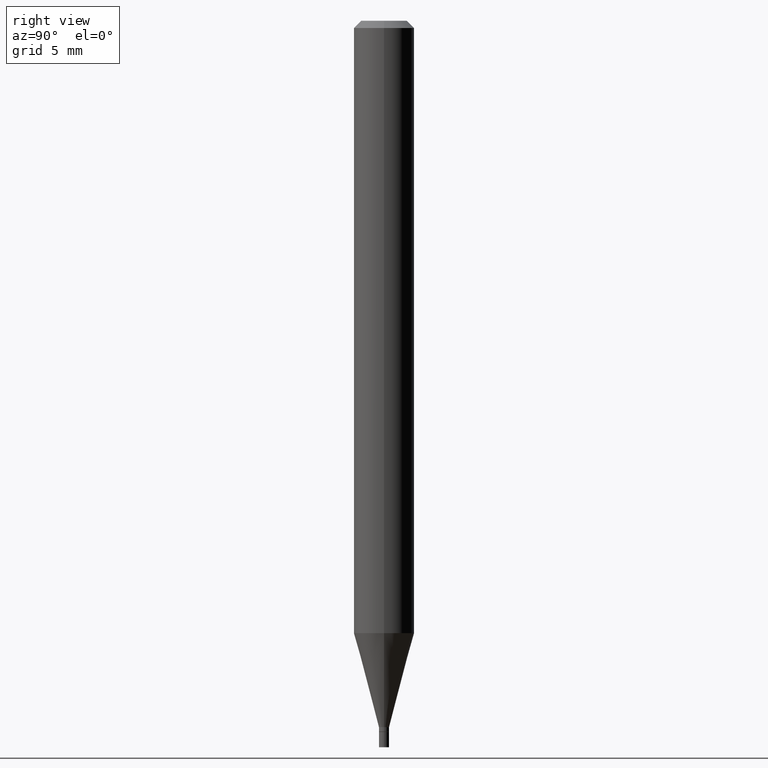
[diagram: clean part render]
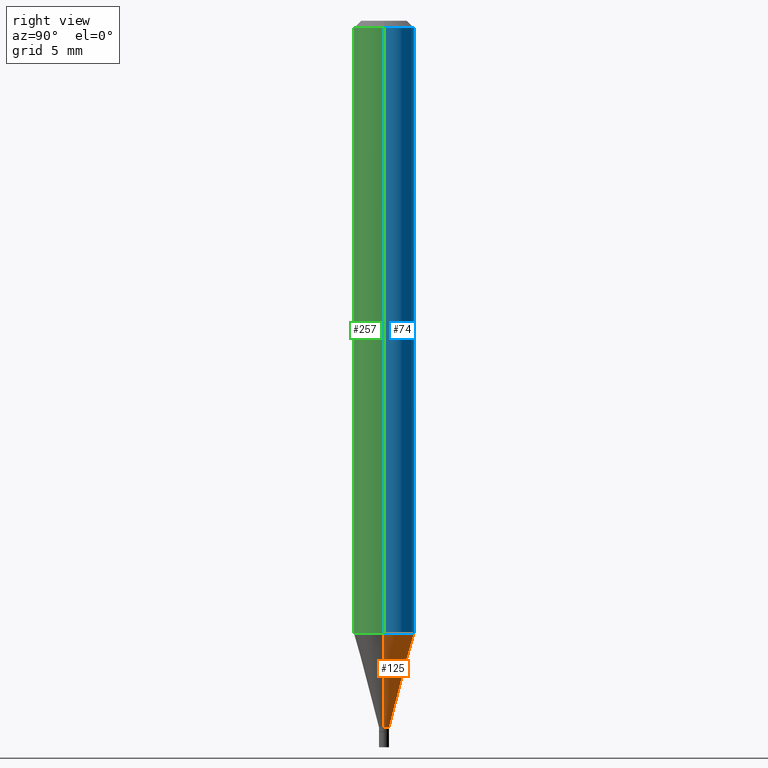
[diagram: same view with three faces highlighted in distinct colors, each labeled with its STEP entity id]
A machine part, right view with three faces highlighted in distinct colors.
Their STEP definitions:

[orange] entity #125 — the highlighted conical surface has half-angle 15 deg.
#5 = CIRCLE ( 'NONE', #455, 0.01049999999999992432 ) ;
#36 = CARTESIAN_POINT ( 'NONE',  ( 0.06250000000000000000, -4.851180641045576712E-15, -1.264433358006418651 ) ) ;
#40 = EDGE_LOOP ( 'NONE', ( #258, #169, #213, #244 ) ) ;
#58 = CARTESIAN_POINT ( 'NONE',  ( 0.01049999999999992432, -5.165646640818432586E-15, -1.458500000000000130 ) ) ;
#67 = DIRECTION ( 'NONE',  ( 0.2588190451025214611, 1.565188264969621573E-15, 0.9659258262890682012 ) ) ;
#72 = AXIS2_PLACEMENT_3D ( 'NONE', #447, #226, #123 ) ;
#90 = CARTESIAN_POINT ( 'NONE',  ( 3.092132334504619836E-29, -4.414745473690185042E-15, -1.264433358006418651 ) ) ;
#119 = LINE ( 'NONE', #231, #380 ) ;
#123 = DIRECTION ( 'NONE',  ( 1.000000000000000000, -6.982962677686243834E-15, 0.000000000000000000 ) ) ;
#125 = ADVANCED_FACE ( 'NONE', ( #272 ), #279, .T. ) ;
#126 = DIRECTION ( 'NONE',  ( -2.445468806185136597E-29, 3.491481338843145583E-15, 1.000000000000000000 ) ) ;
#150 = CIRCLE ( 'NONE', #371, 0.06250000000000000000 ) ;
#155 = CARTESIAN_POINT ( 'NONE',  ( -0.01049999999999992432, -4.494187404644019652E-15, -1.458500000000000130 ) ) ;
#169 = ORIENTED_EDGE ( 'NONE', *, *, #264, .T. ) ;
#171 = LINE ( 'NONE', #391, #306 ) ;
#213 = ORIENTED_EDGE ( 'NONE', *, *, #293, .F. ) ;
#215 = DIRECTION ( 'NONE',  ( 1.000000000000000000, -6.982962677686262766E-15, 0.000000000000000000 ) ) ;
#226 = DIRECTION ( 'NONE',  ( -2.445468806185136597E-29, 3.491481338843145583E-15, 1.000000000000000000 ) ) ;
#231 = CARTESIAN_POINT ( 'NONE',  ( -0.01049999999999992432, -5.017718545447917667E-15, -1.458500000000000130 ) ) ;
#244 = ORIENTED_EDGE ( 'NONE', *, *, #400, .F. ) ;
#246 = VERTEX_POINT ( 'NONE', #155 ) ;
#258 = ORIENTED_EDGE ( 'NONE', *, *, #433, .T. ) ;
#264 = EDGE_CURVE ( 'NONE', #246, #384, #119, .T. ) ;
#269 = DIRECTION ( 'NONE',  ( -0.2588190451025214611, 5.211531920934551042E-15, 0.9659258262890682012 ) ) ;
#272 = FACE_OUTER_BOUND ( 'NONE', #40, .T. ) ;
#279 = CONICAL_SURFACE ( 'NONE', #72, 0.01049999999999992432, 0.2617993877991501295 ) ;
#284 = CARTESIAN_POINT ( 'NONE',  ( -0.06250000000000000000, -3.970656263840122426E-15, -1.264433358006418651 ) ) ;
#293 = EDGE_CURVE ( 'NONE', #353, #384, #150, .T. ) ;
#306 = VECTOR ( 'NONE', #67, 39.37007874015747433 ) ;
#313 = DIRECTION ( 'NONE',  ( -2.445468806185136597E-29, 3.491481338843145583E-15, 1.000000000000000000 ) ) ;
#353 = VERTEX_POINT ( 'NONE', #36 ) ;
#371 = AXIS2_PLACEMENT_3D ( 'NONE', #90, #126, #215 ) ;
#380 = VECTOR ( 'NONE', #269, 39.37007874015747433 ) ;
#383 = CARTESIAN_POINT ( 'NONE',  ( 3.566716253821021430E-29, -5.092325532702727858E-15, -1.458500000000000130 ) ) ;
#384 = VERTEX_POINT ( 'NONE', #284 ) ;
#391 = CARTESIAN_POINT ( 'NONE',  ( 0.01049999999999992432, -5.165646640818432586E-15, -1.458500000000000130 ) ) ;
#400 = EDGE_CURVE ( 'NONE', #457, #353, #171, .T. ) ;
#433 = EDGE_CURVE ( 'NONE', #457, #246, #5, .T. ) ;
#447 = CARTESIAN_POINT ( 'NONE',  ( 3.566716253821021430E-29, -5.092325532702727858E-15, -1.458500000000000130 ) ) ;
#453 = DIRECTION ( 'NONE',  ( 1.000000000000000000, -6.982962677686243834E-15, 0.000000000000000000 ) ) ;
#455 = AXIS2_PLACEMENT_3D ( 'NONE', #383, #313, #453 ) ;
#457 = VERTEX_POINT ( 'NONE', #58 ) ;

[blue] entity #74 — the highlighted cylindrical surface (edge-blend (fillet) strip) has radius 1.5875 mm, axis along (-0, 0, 1).
#8 = CYLINDRICAL_SURFACE ( 'NONE', #136, 0.06250000000000000000 ) ;
#15 = CARTESIAN_POINT ( 'NONE',  ( 0.06250000000000000000, -4.364351673553916694E-16, 3.047610484872459871E-30 ) ) ;
#30 = VECTOR ( 'NONE', #374, 39.37007874015748143 ) ;
#34 = CARTESIAN_POINT ( 'NONE',  ( -0.06250000000000000000, -1.789469637036353642E-15, -0.01499999999999999944 ) ) ;
#36 = CARTESIAN_POINT ( 'NONE',  ( 0.06250000000000000000, -4.851180641045576712E-15, -1.264433358006418651 ) ) ;
#44 = DIRECTION ( 'NONE',  ( -2.445468806185136597E-29, 3.491481338843145583E-15, 1.000000000000000000 ) ) ;
#57 = EDGE_CURVE ( 'NONE', #384, #354, #118, .T. ) ;
#74 = ADVANCED_FACE ( 'NONE', ( #111 ), #8, .T. ) ;
#90 = CARTESIAN_POINT ( 'NONE',  ( 3.092132334504619836E-29, -4.414745473690185042E-15, -1.264433358006418651 ) ) ;
#111 = FACE_OUTER_BOUND ( 'NONE', #414, .T. ) ;
#118 = LINE ( 'NONE', #157, #437 ) ;
#126 = DIRECTION ( 'NONE',  ( -2.445468806185136597E-29, 3.491481338843145583E-15, 1.000000000000000000 ) ) ;
#128 = ORIENTED_EDGE ( 'NONE', *, *, #140, .F. ) ;
#130 = AXIS2_PLACEMENT_3D ( 'NONE', #278, #419, #164 ) ;
#136 = AXIS2_PLACEMENT_3D ( 'NONE', #266, #44, #222 ) ;
#140 = EDGE_CURVE ( 'NONE', #353, #242, #158, .T. ) ;
#150 = CIRCLE ( 'NONE', #371, 0.06250000000000000000 ) ;
#157 = CARTESIAN_POINT ( 'NONE',  ( -0.06250000000000000000, 4.440892098500626162E-16, -3.074334431409316114E-30 ) ) ;
#158 = LINE ( 'NONE', #15, #30 ) ;
#164 = DIRECTION ( 'NONE',  ( 1.000000000000000000, -6.982962677686266711E-15, 0.000000000000000000 ) ) ;
#215 = DIRECTION ( 'NONE',  ( 1.000000000000000000, -6.982962677686262766E-15, 0.000000000000000000 ) ) ;
#222 = DIRECTION ( 'NONE',  ( 1.000000000000000000, -6.982962677686266711E-15, 4.876176775795935793E-29 ) ) ;
#242 = VERTEX_POINT ( 'NONE', #411 ) ;
#266 = CARTESIAN_POINT ( 'NONE',  ( 0.000000000000000000, 0.000000000000000000, 0.000000000000000000 ) ) ;
#278 = CARTESIAN_POINT ( 'NONE',  ( 3.668203209277705088E-31, -5.237222008264718399E-17, -0.01499999999999999944 ) ) ;
#284 = CARTESIAN_POINT ( 'NONE',  ( -0.06250000000000000000, -3.970656263840122426E-15, -1.264433358006418651 ) ) ;
#293 = EDGE_CURVE ( 'NONE', #353, #384, #150, .T. ) ;
#348 = ORIENTED_EDGE ( 'NONE', *, *, #388, .F. ) ;
#353 = VERTEX_POINT ( 'NONE', #36 ) ;
#354 = VERTEX_POINT ( 'NONE', #34 ) ;
#371 = AXIS2_PLACEMENT_3D ( 'NONE', #90, #126, #215 ) ;
#374 = DIRECTION ( 'NONE',  ( -2.445468806185136877E-29, 3.491481338843145188E-15, 1.000000000000000000 ) ) ;
#384 = VERTEX_POINT ( 'NONE', #284 ) ;
#388 = EDGE_CURVE ( 'NONE', #242, #354, #426, .T. ) ;
#411 = CARTESIAN_POINT ( 'NONE',  ( 0.06250000000000000000, -4.888073874380388472E-16, -0.01499999999999999944 ) ) ;
#414 = EDGE_LOOP ( 'NONE', ( #462, #420, #348, #128 ) ) ;
#419 = DIRECTION ( 'NONE',  ( -2.445468806185136597E-29, 3.491481338843145583E-15, 1.000000000000000000 ) ) ;
#420 = ORIENTED_EDGE ( 'NONE', *, *, #57, .T. ) ;
#426 = CIRCLE ( 'NONE', #130, 0.06250000000000000000 ) ;
#437 = VECTOR ( 'NONE', #442, 39.37007874015748143 ) ;
#442 = DIRECTION ( 'NONE',  ( -2.445468806185136877E-29, 3.491481338843145188E-15, 1.000000000000000000 ) ) ;
#462 = ORIENTED_EDGE ( 'NONE', *, *, #293, .T. ) ;

[green] entity #257 — the highlighted cylindrical surface (edge-blend (fillet) strip) has radius 1.5875 mm, axis along (-0, 0, 1).
#11 = DIRECTION ( 'NONE',  ( -2.445468806185136597E-29, 3.491481338843145583E-15, 1.000000000000000000 ) ) ;
#15 = CARTESIAN_POINT ( 'NONE',  ( 0.06250000000000000000, -4.364351673553916694E-16, 3.047610484872459871E-30 ) ) ;
#26 = ORIENTED_EDGE ( 'NONE', *, *, #270, .F. ) ;
#30 = VECTOR ( 'NONE', #374, 39.37007874015748143 ) ;
#34 = CARTESIAN_POINT ( 'NONE',  ( -0.06250000000000000000, -1.789469637036353642E-15, -0.01499999999999999944 ) ) ;
#36 = CARTESIAN_POINT ( 'NONE',  ( 0.06250000000000000000, -4.851180641045576712E-15, -1.264433358006418651 ) ) ;
#57 = EDGE_CURVE ( 'NONE', #384, #354, #118, .T. ) ;
#80 = DIRECTION ( 'NONE',  ( 1.000000000000000000, -6.982962677686266711E-15, 0.000000000000000000 ) ) ;
#81 = DIRECTION ( 'NONE',  ( 1.000000000000000000, -6.982962677686266711E-15, 4.876176775795935793E-29 ) ) ;
#84 = CYLINDRICAL_SURFACE ( 'NONE', #430, 0.06250000000000000000 ) ;
#86 = CARTESIAN_POINT ( 'NONE',  ( 0.000000000000000000, 0.000000000000000000, 0.000000000000000000 ) ) ;
#118 = LINE ( 'NONE', #157, #437 ) ;
#120 = CIRCLE ( 'NONE', #251, 0.06250000000000000000 ) ;
#140 = EDGE_CURVE ( 'NONE', #353, #242, #158, .T. ) ;
#149 = DIRECTION ( 'NONE',  ( -2.445468806185136597E-29, 3.491481338843145583E-15, 1.000000000000000000 ) ) ;
#157 = CARTESIAN_POINT ( 'NONE',  ( -0.06250000000000000000, 4.440892098500626162E-16, -3.074334431409316114E-30 ) ) ;
#158 = LINE ( 'NONE', #15, #30 ) ;
#179 = CIRCLE ( 'NONE', #238, 0.06250000000000000000 ) ;
#187 = CARTESIAN_POINT ( 'NONE',  ( 3.668203209277705088E-31, -5.237222008264718399E-17, -0.01499999999999999944 ) ) ;
#193 = FACE_OUTER_BOUND ( 'NONE', #387, .T. ) ;
#212 = ORIENTED_EDGE ( 'NONE', *, *, #57, .F. ) ;
#238 = AXIS2_PLACEMENT_3D ( 'NONE', #187, #11, #80 ) ;
#242 = VERTEX_POINT ( 'NONE', #411 ) ;
#251 = AXIS2_PLACEMENT_3D ( 'NONE', #362, #360, #322 ) ;
#254 = ORIENTED_EDGE ( 'NONE', *, *, #340, .T. ) ;
#257 = ADVANCED_FACE ( 'NONE', ( #193 ), #84, .T. ) ;
#270 = EDGE_CURVE ( 'NONE', #354, #242, #179, .T. ) ;
#284 = CARTESIAN_POINT ( 'NONE',  ( -0.06250000000000000000, -3.970656263840122426E-15, -1.264433358006418651 ) ) ;
#322 = DIRECTION ( 'NONE',  ( 1.000000000000000000, -6.982962677686262766E-15, 0.000000000000000000 ) ) ;
#340 = EDGE_CURVE ( 'NONE', #384, #353, #120, .T. ) ;
#353 = VERTEX_POINT ( 'NONE', #36 ) ;
#354 = VERTEX_POINT ( 'NONE', #34 ) ;
#360 = DIRECTION ( 'NONE',  ( -2.445468806185136597E-29, 3.491481338843145583E-15, 1.000000000000000000 ) ) ;
#362 = CARTESIAN_POINT ( 'NONE',  ( 3.092132334504619836E-29, -4.414745473690185042E-15, -1.264433358006418651 ) ) ;
#374 = DIRECTION ( 'NONE',  ( -2.445468806185136877E-29, 3.491481338843145188E-15, 1.000000000000000000 ) ) ;
#384 = VERTEX_POINT ( 'NONE', #284 ) ;
#387 = EDGE_LOOP ( 'NONE', ( #212, #254, #450, #26 ) ) ;
#411 = CARTESIAN_POINT ( 'NONE',  ( 0.06250000000000000000, -4.888073874380388472E-16, -0.01499999999999999944 ) ) ;
#430 = AXIS2_PLACEMENT_3D ( 'NONE', #86, #149, #81 ) ;
#437 = VECTOR ( 'NONE', #442, 39.37007874015748143 ) ;
#442 = DIRECTION ( 'NONE',  ( -2.445468806185136877E-29, 3.491481338843145188E-15, 1.000000000000000000 ) ) ;
#450 = ORIENTED_EDGE ( 'NONE', *, *, #140, .T. ) ;